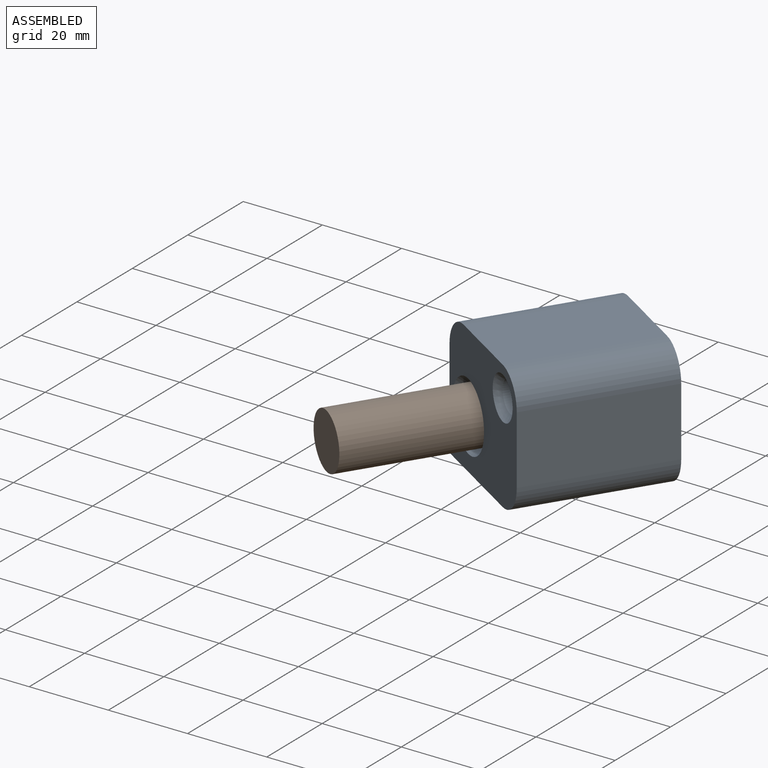
[diagram: assembled view]
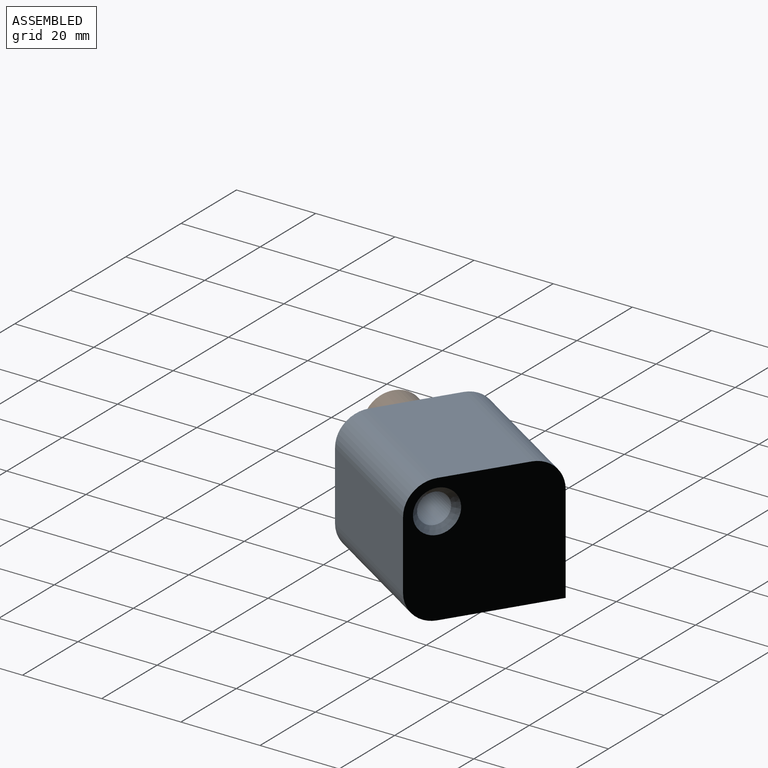
[diagram: assembled view, second angle]
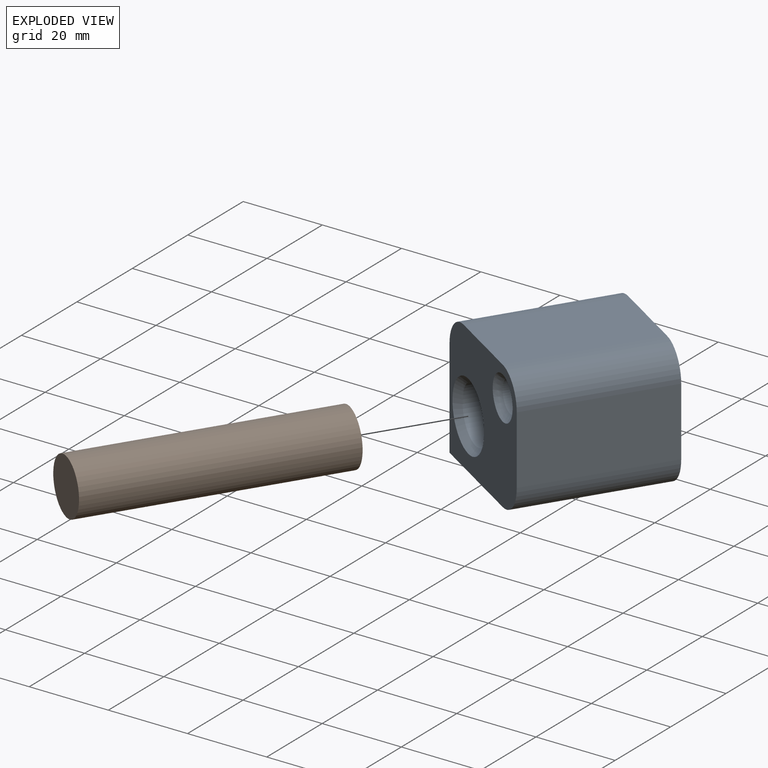
[diagram: exploded view]
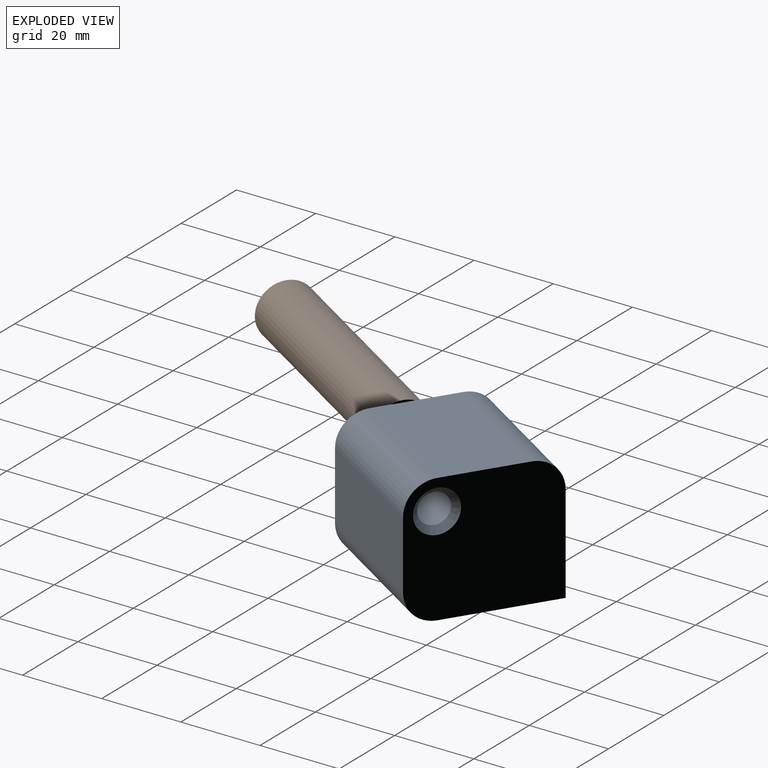
[diagram: exploded view, second angle]
ASSEMBLY  parts=2 mates=2
PART A: 15 faces, bbox 36.4x36.8x32.5 mm
  f0: plane 36.83x24.89mm, normal (-1,0,0), area 916.8mm2, adj f1,f4,f5,f8
  f1: plane 36.83x28.79mm, normal (0,0,-1), area 1060.4mm2, adj f0,f4,f5,f6
  f2: plane 36.83x17.27mm, normal (1,0,0), area 636.1mm2, adj f4,f5,f6,f7
  f3: plane 36.83x21.17mm, normal (0,0,1), area 779.7mm2, adj f4,f5,f7,f8
  f4: plane 36.41x32.51mm, normal (0,-1,0), area 824mm2, adj f0,f1,f2,f3,f6,f7,f8,f12
  f5: plane 36.41x32.51mm, normal (0,1,0), area 1054.9mm2, adj f0,f1,f2,f3,f6,f7,f8,f14
  f6: cylinder r=7.62mm len=36.83mm, axis (0,1,0), area 440.8mm2, adj f1,f2,f4,f5
  f7: cylinder r=7.62mm len=36.83mm, axis (0,1,0), area 440.8mm2, adj f2,f3,f4,f5
  f8: cylinder r=7.62mm len=36.83mm, axis (0,1,0), area 440.8mm2, adj f0,f3,f4,f5
  f9: cylinder r=3.81mm len=33.66mm, axis (0,-1,0), area 805.7mm2, adj f12,f14
  f10: cylinder r=6.99mm len=30.16mm, axis (0,-1,0), area 1323.8mm2, adj f11,f13
  f11: plane 13.97x13.97mm, normal (0,-1,0), area 153.3mm2, adj f10
  f12: cone r=3.81mm half-angle=45deg, axis (0,-1,0), area 64.9mm2, adj f4,f9
  f13: cone r=6.99mm half-angle=45deg, axis (0,-1,0), area 109.7mm2, adj f4,f10
  f14: cone r=5.4mm half-angle=45deg, axis (0,1,0), area 64.9mm2, adj f5,f9
PART B: 3 faces, bbox 14x63.5x14 mm
  f0: cylinder r=6.99mm len=63.5mm, axis (0,1,0), area 2786.9mm2, adj f1,f2
  f1: plane 13.97x13.97mm, normal (0,-1,0), area 153.3mm2, adj f0
  f2: plane 13.97x13.97mm, normal (0,1,0), area 153.3mm2, adj f0
PLACE A rot(axis=(0,0,-1),32.5deg) t=(47.15,-7.81,-0.63)mm fixed
PLACE B rot(axis=(0.26,0.89,-0.38),74.6deg) t=(26.72,-0.79,-40.74)mm
MATE planar B.f0 <-> A.f10  axis (0.54,0.84,0) through (52.99,-17.55,12.07)mm
MATE revolute B.f0 <-> A.f10  axis (0.54,0.84,0) through (52.99,-17.55,12.07)mm
